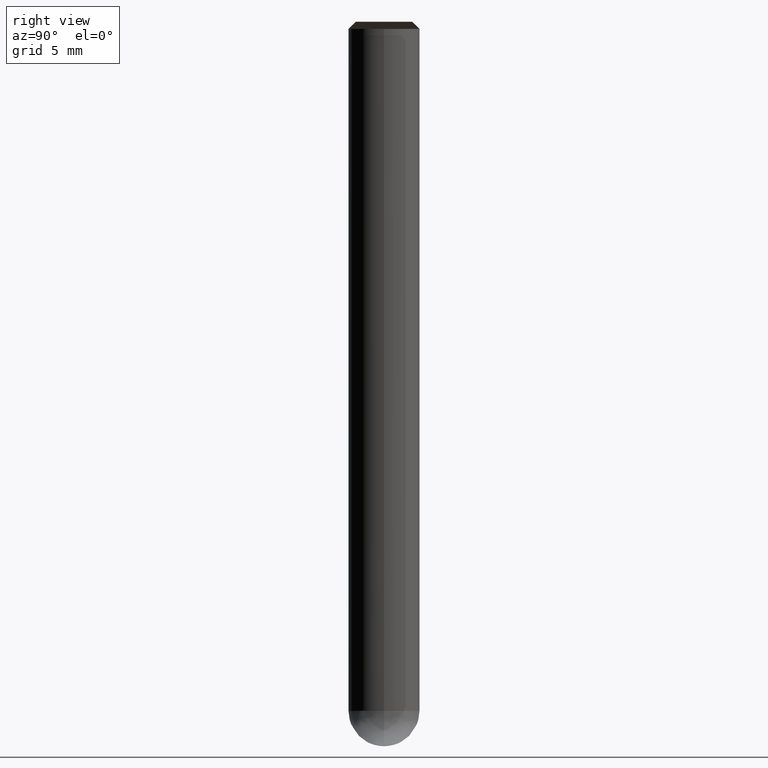
[diagram: clean part render]
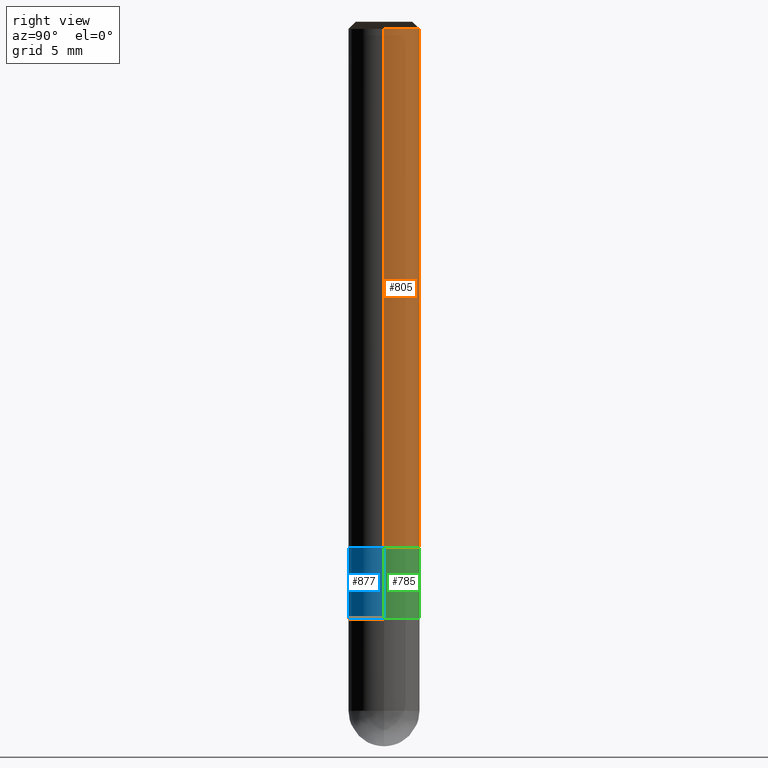
[diagram: same view with three faces highlighted in distinct colors, each labeled with its STEP entity id]
A machine part, right view with three faces highlighted in distinct colors.
Their STEP definitions:

[orange] entity #805 — the highlighted face is a freeform B-spline surface patch.
#610=CARTESIAN_POINT('',(2.5,0.0,0.0));
#611=CARTESIAN_POINT('',(2.5,2.5,0.0));
#612=CARTESIAN_POINT('',(0.0,2.5,0.0));
#613=CARTESIAN_POINT('',(-2.5,2.5,0.0));
#614=CARTESIAN_POINT('',(-2.5,0.0,0.0));
#615=CARTESIAN_POINT('',(2.5,0.0,36.5));
#616=CARTESIAN_POINT('',(2.5,2.5,36.5));
#617=CARTESIAN_POINT('',(0.0,2.5,36.5));
#618=CARTESIAN_POINT('',(-2.5,2.5,36.5));
#619=CARTESIAN_POINT('',(-2.5,0.0,36.5));
#786=(
BOUNDED_SURFACE()
B_SPLINE_SURFACE(1,2,(
(#610,#611,#612,#613,#614),
(#615,#616,#617,#618,#619)
), .UNSPECIFIED.,.F.,.F.,.F.)
B_SPLINE_SURFACE_WITH_KNOTS((2,2),(3,2,3),(
0.0,1.0),(
0.0,0.5,1.0), .UNSPECIFIED.)
GEOMETRIC_REPRESENTATION_ITEM()
RATIONAL_B_SPLINE_SURFACE(((1.0,0.707106781187,1.0,0.707106781187,1.0),
(1.0,0.707106781187,1.0,0.707106781187,1.0)
))
REPRESENTATION_ITEM('')
SURFACE()
);
#787=(
BOUNDED_CURVE()
B_SPLINE_CURVE(2,(#614,#613,#612,#611,#610),.UNSPECIFIED.,.F.,.F.)
B_SPLINE_CURVE_WITH_KNOTS((3,2,3),
(0.0,0.5,1.0),.UNSPECIFIED.)
CURVE()
GEOMETRIC_REPRESENTATION_ITEM()
RATIONAL_B_SPLINE_CURVE((1.0,0.707106781187,1.0,0.707106781187,1.0))
REPRESENTATION_ITEM('')
);
#788=(
BOUNDED_CURVE()
B_SPLINE_CURVE(1,(#610,#615),.UNSPECIFIED.,.F.,.F.)
B_SPLINE_CURVE_WITH_KNOTS((2,2),
(0.0,1.0),.UNSPECIFIED.)
CURVE()
GEOMETRIC_REPRESENTATION_ITEM()
RATIONAL_B_SPLINE_CURVE((1.0,1.0))
REPRESENTATION_ITEM('')
);
#789=(
BOUNDED_CURVE()
B_SPLINE_CURVE(2,(#615,#616,#617,#618,#619),.UNSPECIFIED.,.F.,.F.)
B_SPLINE_CURVE_WITH_KNOTS((3,2,3),
(0.0,0.5,1.0),.UNSPECIFIED.)
CURVE()
GEOMETRIC_REPRESENTATION_ITEM()
RATIONAL_B_SPLINE_CURVE((1.0,0.707106781187,1.0,0.707106781187,1.0))
REPRESENTATION_ITEM('')
);
#790=(
BOUNDED_CURVE()
B_SPLINE_CURVE(1,(#619,#614),.UNSPECIFIED.,.F.,.F.)
B_SPLINE_CURVE_WITH_KNOTS((2,2),
(0.0,1.0),.UNSPECIFIED.)
CURVE()
GEOMETRIC_REPRESENTATION_ITEM()
RATIONAL_B_SPLINE_CURVE((1.0,1.0))
REPRESENTATION_ITEM('')
);
#791=VERTEX_POINT('',#610);
#792=VERTEX_POINT('',#614);
#793=VERTEX_POINT('',#615);
#794=VERTEX_POINT('',#619);
#795=EDGE_CURVE('',#792,#791,#787,.T.);
#796=EDGE_CURVE('',#791,#793,#788,.T.);
#797=EDGE_CURVE('',#793,#794,#789,.T.);
#798=EDGE_CURVE('',#794,#792,#790,.T.);
#799=ORIENTED_EDGE('',*,*,#795,.T.);
#800=ORIENTED_EDGE('',*,*,#796,.T.);
#801=ORIENTED_EDGE('',*,*,#797,.T.);
#802=ORIENTED_EDGE('',*,*,#798,.T.);
#803=EDGE_LOOP('',(#799,#800,#801,#802));
#804=FACE_OUTER_BOUND('',#803,.T.);
#805=ADVANCED_FACE('',(#804),#786,.T.);

[blue] entity #877 — the highlighted face is a freeform B-spline surface patch.
#595=CARTESIAN_POINT('',(2.5,0.0,-5.0));
#599=CARTESIAN_POINT('',(-2.5,0.0,-5.0));
#607=CARTESIAN_POINT('',(-2.5,-2.5,-5.0));
#608=CARTESIAN_POINT('',(0.0,-2.5,-5.0));
#609=CARTESIAN_POINT('',(2.5,-2.5,-5.0));
#610=CARTESIAN_POINT('',(2.5,0.0,0.0));
#614=CARTESIAN_POINT('',(-2.5,0.0,0.0));
#626=CARTESIAN_POINT('',(-2.5,-2.5,0.0));
#627=CARTESIAN_POINT('',(0.0,-2.5,0.0));
#628=CARTESIAN_POINT('',(2.5,-2.5,0.0));
#858=(
BOUNDED_SURFACE()
B_SPLINE_SURFACE(1,2,(
(#599,#607,#608,#609,#595),
(#614,#626,#627,#628,#610)
), .UNSPECIFIED.,.F.,.F.,.F.)
B_SPLINE_SURFACE_WITH_KNOTS((2,2),(3,2,3),(
0.0,1.0),(
0.0,0.5,1.0), .UNSPECIFIED.)
GEOMETRIC_REPRESENTATION_ITEM()
RATIONAL_B_SPLINE_SURFACE(((1.0,0.707106781187,1.0,0.707106781187,1.0),
(1.0,0.707106781187,1.0,0.707106781187,1.0)
))
REPRESENTATION_ITEM('')
SURFACE()
);
#859=(
BOUNDED_CURVE()
B_SPLINE_CURVE(2,(#595,#609,#608,#607,#599),.UNSPECIFIED.,.F.,.F.)
B_SPLINE_CURVE_WITH_KNOTS((3,2,3),
(0.0,0.5,1.0),.UNSPECIFIED.)
CURVE()
GEOMETRIC_REPRESENTATION_ITEM()
RATIONAL_B_SPLINE_CURVE((1.0,0.707106781187,1.0,0.707106781187,1.0))
REPRESENTATION_ITEM('')
);
#860=(
BOUNDED_CURVE()
B_SPLINE_CURVE(1,(#599,#614),.UNSPECIFIED.,.F.,.F.)
B_SPLINE_CURVE_WITH_KNOTS((2,2),
(0.0,1.0),.UNSPECIFIED.)
CURVE()
GEOMETRIC_REPRESENTATION_ITEM()
RATIONAL_B_SPLINE_CURVE((1.0,1.0))
REPRESENTATION_ITEM('')
);
#861=(
BOUNDED_CURVE()
B_SPLINE_CURVE(2,(#614,#626,#627,#628,#610),.UNSPECIFIED.,.F.,.F.)
B_SPLINE_CURVE_WITH_KNOTS((3,2,3),
(0.0,0.5,1.0),.UNSPECIFIED.)
CURVE()
GEOMETRIC_REPRESENTATION_ITEM()
RATIONAL_B_SPLINE_CURVE((1.0,0.707106781187,1.0,0.707106781187,1.0))
REPRESENTATION_ITEM('')
);
#862=(
BOUNDED_CURVE()
B_SPLINE_CURVE(1,(#610,#595),.UNSPECIFIED.,.F.,.F.)
B_SPLINE_CURVE_WITH_KNOTS((2,2),
(0.0,1.0),.UNSPECIFIED.)
CURVE()
GEOMETRIC_REPRESENTATION_ITEM()
RATIONAL_B_SPLINE_CURVE((1.0,1.0))
REPRESENTATION_ITEM('')
);
#863=VERTEX_POINT('',#595);
#864=VERTEX_POINT('',#599);
#865=VERTEX_POINT('',#610);
#866=VERTEX_POINT('',#614);
#867=EDGE_CURVE('',#863,#864,#859,.T.);
#868=EDGE_CURVE('',#864,#866,#860,.T.);
#869=EDGE_CURVE('',#866,#865,#861,.T.);
#870=EDGE_CURVE('',#865,#863,#862,.T.);
#871=ORIENTED_EDGE('',*,*,#867,.T.);
#872=ORIENTED_EDGE('',*,*,#868,.T.);
#873=ORIENTED_EDGE('',*,*,#869,.T.);
#874=ORIENTED_EDGE('',*,*,#870,.T.);
#875=EDGE_LOOP('',(#871,#872,#873,#874));
#876=FACE_OUTER_BOUND('',#875,.T.);
#877=ADVANCED_FACE('',(#876),#858,.T.);

[green] entity #785 — the highlighted face is a freeform B-spline surface patch.
#595=CARTESIAN_POINT('',(2.5,0.0,-5.0));
#596=CARTESIAN_POINT('',(2.5,2.5,-5.0));
#597=CARTESIAN_POINT('',(0.0,2.5,-5.0));
#598=CARTESIAN_POINT('',(-2.5,2.5,-5.0));
#599=CARTESIAN_POINT('',(-2.5,0.0,-5.0));
#610=CARTESIAN_POINT('',(2.5,0.0,0.0));
#611=CARTESIAN_POINT('',(2.5,2.5,0.0));
#612=CARTESIAN_POINT('',(0.0,2.5,0.0));
#613=CARTESIAN_POINT('',(-2.5,2.5,0.0));
#614=CARTESIAN_POINT('',(-2.5,0.0,0.0));
#766=(
BOUNDED_SURFACE()
B_SPLINE_SURFACE(1,2,(
(#595,#596,#597,#598,#599),
(#610,#611,#612,#613,#614)
), .UNSPECIFIED.,.F.,.F.,.F.)
B_SPLINE_SURFACE_WITH_KNOTS((2,2),(3,2,3),(
0.0,1.0),(
0.0,0.5,1.0), .UNSPECIFIED.)
GEOMETRIC_REPRESENTATION_ITEM()
RATIONAL_B_SPLINE_SURFACE(((1.0,0.707106781187,1.0,0.707106781187,1.0),
(1.0,0.707106781187,1.0,0.707106781187,1.0)
))
REPRESENTATION_ITEM('')
SURFACE()
);
#767=(
BOUNDED_CURVE()
B_SPLINE_CURVE(2,(#599,#598,#597,#596,#595),.UNSPECIFIED.,.F.,.F.)
B_SPLINE_CURVE_WITH_KNOTS((3,2,3),
(0.0,0.5,1.0),.UNSPECIFIED.)
CURVE()
GEOMETRIC_REPRESENTATION_ITEM()
RATIONAL_B_SPLINE_CURVE((1.0,0.707106781187,1.0,0.707106781187,1.0))
REPRESENTATION_ITEM('')
);
#768=(
BOUNDED_CURVE()
B_SPLINE_CURVE(1,(#595,#610),.UNSPECIFIED.,.F.,.F.)
B_SPLINE_CURVE_WITH_KNOTS((2,2),
(0.0,1.0),.UNSPECIFIED.)
CURVE()
GEOMETRIC_REPRESENTATION_ITEM()
RATIONAL_B_SPLINE_CURVE((1.0,1.0))
REPRESENTATION_ITEM('')
);
#769=(
BOUNDED_CURVE()
B_SPLINE_CURVE(2,(#610,#611,#612,#613,#614),.UNSPECIFIED.,.F.,.F.)
B_SPLINE_CURVE_WITH_KNOTS((3,2,3),
(0.0,0.5,1.0),.UNSPECIFIED.)
CURVE()
GEOMETRIC_REPRESENTATION_ITEM()
RATIONAL_B_SPLINE_CURVE((1.0,0.707106781187,1.0,0.707106781187,1.0))
REPRESENTATION_ITEM('')
);
#770=(
BOUNDED_CURVE()
B_SPLINE_CURVE(1,(#614,#599),.UNSPECIFIED.,.F.,.F.)
B_SPLINE_CURVE_WITH_KNOTS((2,2),
(0.0,1.0),.UNSPECIFIED.)
CURVE()
GEOMETRIC_REPRESENTATION_ITEM()
RATIONAL_B_SPLINE_CURVE((1.0,1.0))
REPRESENTATION_ITEM('')
);
#771=VERTEX_POINT('',#595);
#772=VERTEX_POINT('',#599);
#773=VERTEX_POINT('',#610);
#774=VERTEX_POINT('',#614);
#775=EDGE_CURVE('',#772,#771,#767,.T.);
#776=EDGE_CURVE('',#771,#773,#768,.T.);
#777=EDGE_CURVE('',#773,#774,#769,.T.);
#778=EDGE_CURVE('',#774,#772,#770,.T.);
#779=ORIENTED_EDGE('',*,*,#775,.T.);
#780=ORIENTED_EDGE('',*,*,#776,.T.);
#781=ORIENTED_EDGE('',*,*,#777,.T.);
#782=ORIENTED_EDGE('',*,*,#778,.T.);
#783=EDGE_LOOP('',(#779,#780,#781,#782));
#784=FACE_OUTER_BOUND('',#783,.T.);
#785=ADVANCED_FACE('',(#784),#766,.T.);